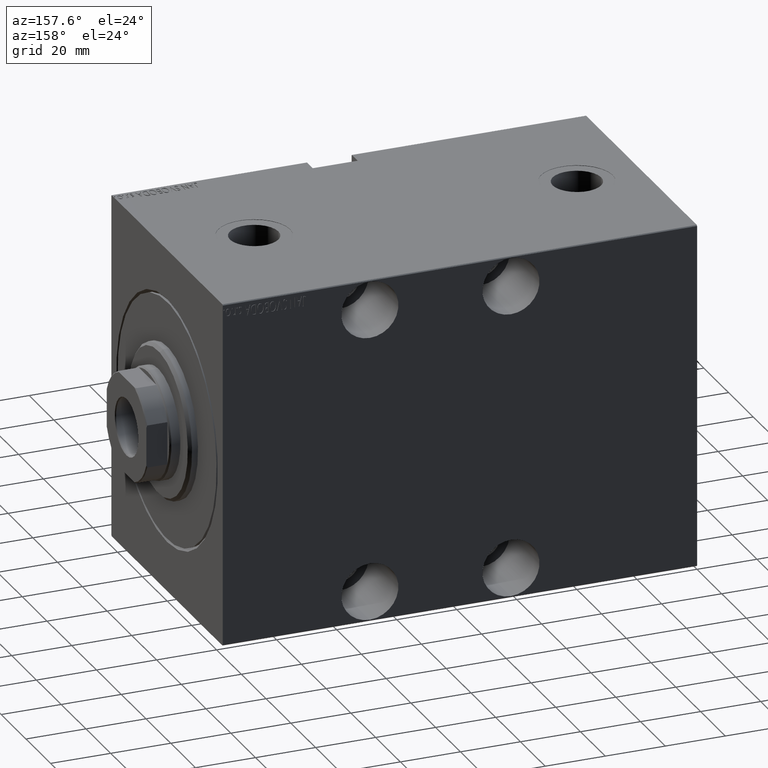
[diagram: clean part render]
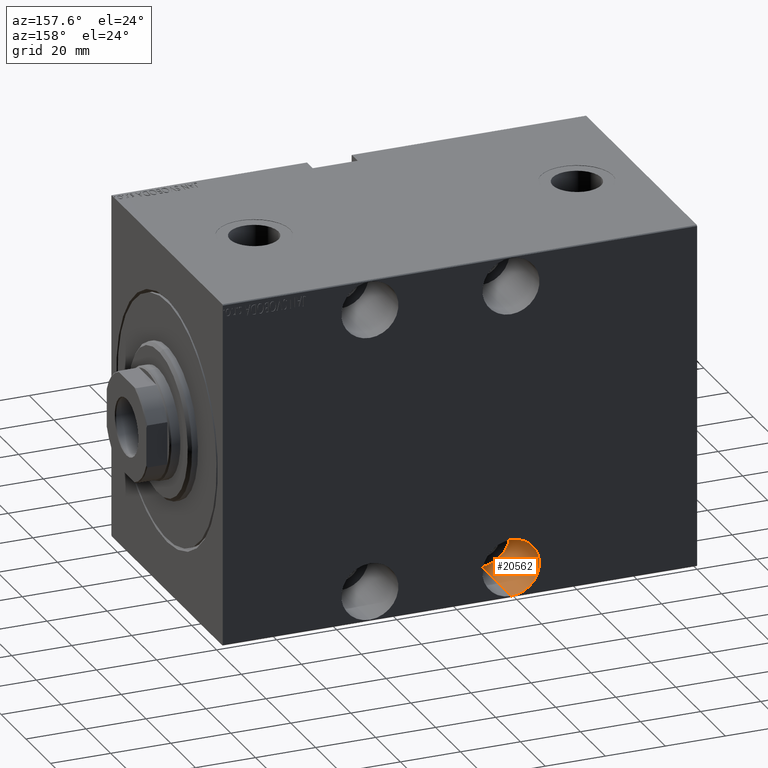
[diagram: same view with one face highlighted and labeled with its STEP entity id]
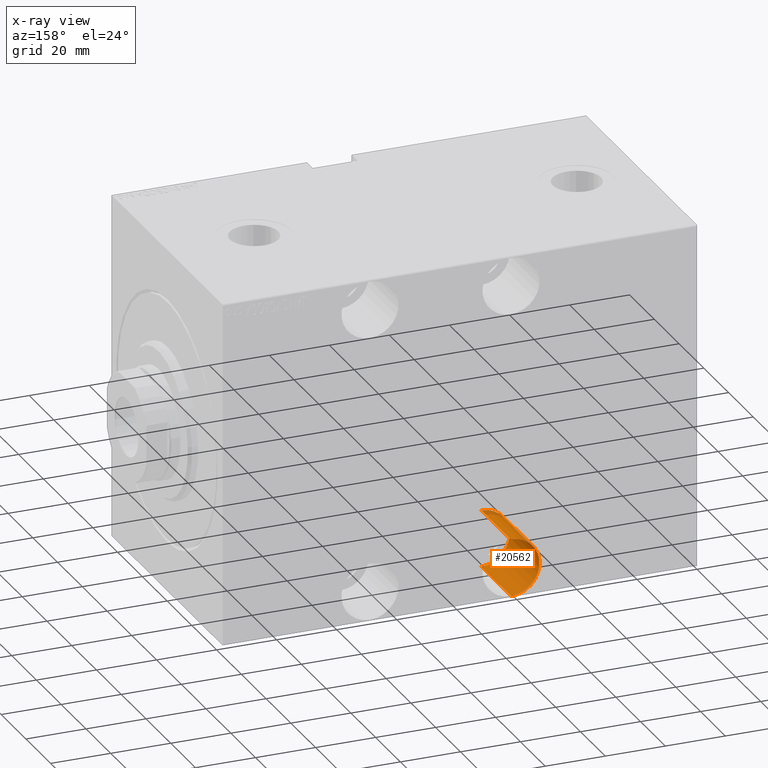
[diagram: x-ray of the same camera — body ghosted, the highlighted face saturated]
A machine part, auxiliary view. The second image highlights one B-rep face of the part: STEP entity #20562.
The next image is the same camera in x-ray: the body ghosted, the highlighted face saturated — about 3% of this face is hidden behind the body in this view.
In plain terms, the highlighted cylindrical surface (edge-blend (fillet) strip) has radius 9.5 mm, axis along (-0, 1, 0).
Its self-contained STEP definition (entity closure, byte-faithful):
#2641 = CARTESIAN_POINT ( 'NONE',  ( 95.99999999999998579, -20.99999999999999645, -38.00000000000000711 ) ) ;
#2683 = EDGE_LOOP ( 'NONE', ( #40986, #21740, #9944, #19609 ) ) ;
#3531 = CARTESIAN_POINT ( 'NONE',  ( 95.99999999999998579, -20.99999999999999645, -38.00000000000000711 ) ) ;
#5601 = LINE ( 'NONE', #19545, #11664 ) ;
#7733 = CARTESIAN_POINT ( 'NONE',  ( 95.99999999999998579, -20.99999999999999645, -47.50000000000000000 ) ) ;
#9573 = CARTESIAN_POINT ( 'NONE',  ( 95.99999999999998579, -45.00000000000000000, -56.99999999999999289 ) ) ;
#9733 = DIRECTION ( 'NONE',  ( -0.000000000000000000, -1.000000000000000000, -0.000000000000000000 ) ) ;
#9944 = ORIENTED_EDGE ( 'NONE', *, *, #21109, .T. ) ;
#11010 = VERTEX_POINT ( 'NONE', #32049 ) ;
#11067 = FACE_OUTER_BOUND ( 'NONE', #2683, .T. ) ;
#11664 = VECTOR ( 'NONE', #33072, 1000.000000000000000 ) ;
#17247 = LINE ( 'NONE', #3531, #25288 ) ;
#17930 = CYLINDRICAL_SURFACE ( 'NONE', #25070, 9.499999999999994671 ) ;
#19545 = CARTESIAN_POINT ( 'NONE',  ( 95.99999999999998579, -20.99999999999999645, -56.99999999999999289 ) ) ;
#19563 = EDGE_CURVE ( 'NONE', #11010, #41104, #35690, .T. ) ;
#19609 = ORIENTED_EDGE ( 'NONE', *, *, #25033, .T. ) ;
#20562 = ADVANCED_FACE ( 'NONE', ( #11067 ), #17930, .F. ) ;
#21109 = EDGE_CURVE ( 'NONE', #11010, #30013, #5601, .T. ) ;
#21453 = DIRECTION ( 'NONE',  ( 0.000000000000000000, 0.000000000000000000, -1.000000000000000000 ) ) ;
#21636 = VERTEX_POINT ( 'NONE', #38204 ) ;
#21740 = ORIENTED_EDGE ( 'NONE', *, *, #19563, .F. ) ;
#24490 = AXIS2_PLACEMENT_3D ( 'NONE', #28756, #34973, #21453 ) ;
#24800 = DIRECTION ( 'NONE',  ( -0.000000000000000000, -1.000000000000000000, -0.000000000000000000 ) ) ;
#25033 = EDGE_CURVE ( 'NONE', #30013, #21636, #30145, .T. ) ;
#25070 = AXIS2_PLACEMENT_3D ( 'NONE', #7733, #24800, #28775 ) ;
#25288 = VECTOR ( 'NONE', #9733, 1000.000000000000000 ) ;
#28756 = CARTESIAN_POINT ( 'NONE',  ( 95.99999999999998579, -45.00000000000000000, -47.50000000000000000 ) ) ;
#28775 = DIRECTION ( 'NONE',  ( 0.000000000000000000, 0.000000000000000000, -1.000000000000000000 ) ) ;
#29468 = EDGE_CURVE ( 'NONE', #41104, #21636, #17247, .T. ) ;
#29473 = CARTESIAN_POINT ( 'NONE',  ( 95.99999999999998579, -20.99999999999999645, -47.50000000000000000 ) ) ;
#30013 = VERTEX_POINT ( 'NONE', #9573 ) ;
#30145 = CIRCLE ( 'NONE', #24490, 9.499999999999994671 ) ;
#32049 = CARTESIAN_POINT ( 'NONE',  ( 95.99999999999998579, -20.99999999999999645, -56.99999999999999289 ) ) ;
#32159 = AXIS2_PLACEMENT_3D ( 'NONE', #29473, #36776, #42561 ) ;
#33072 = DIRECTION ( 'NONE',  ( -0.000000000000000000, -1.000000000000000000, -0.000000000000000000 ) ) ;
#34973 = DIRECTION ( 'NONE',  ( 0.000000000000000000, -1.000000000000000000, 0.000000000000000000 ) ) ;
#35690 = CIRCLE ( 'NONE', #32159, 9.499999999999994671 ) ;
#36776 = DIRECTION ( 'NONE',  ( 0.000000000000000000, -1.000000000000000000, 0.000000000000000000 ) ) ;
#38204 = CARTESIAN_POINT ( 'NONE',  ( 95.99999999999998579, -45.00000000000000000, -38.00000000000000711 ) ) ;
#40986 = ORIENTED_EDGE ( 'NONE', *, *, #29468, .F. ) ;
#41104 = VERTEX_POINT ( 'NONE', #2641 ) ;
#42561 = DIRECTION ( 'NONE',  ( 0.000000000000000000, 0.000000000000000000, -1.000000000000000000 ) ) ;